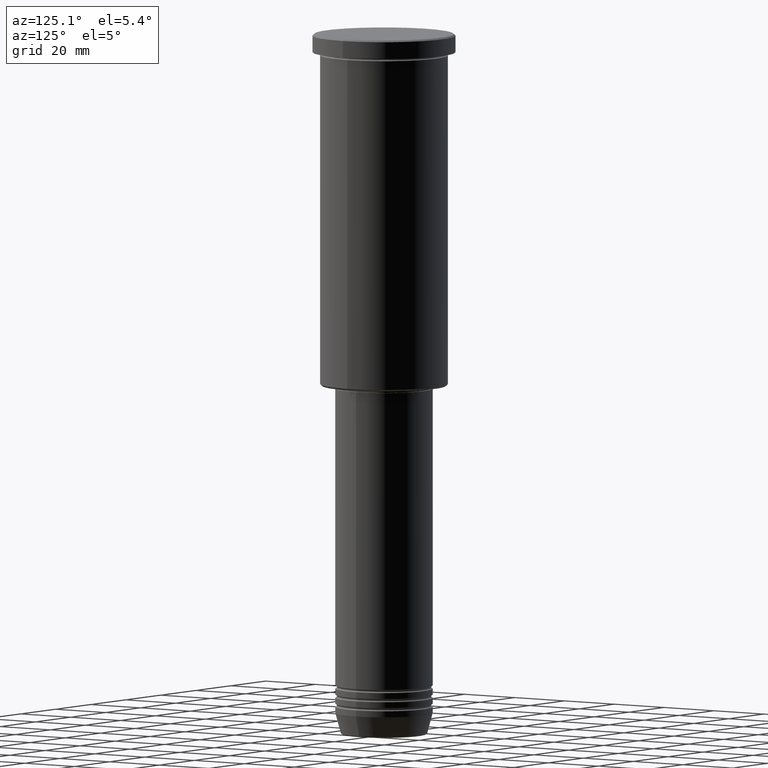
[diagram: clean part render]
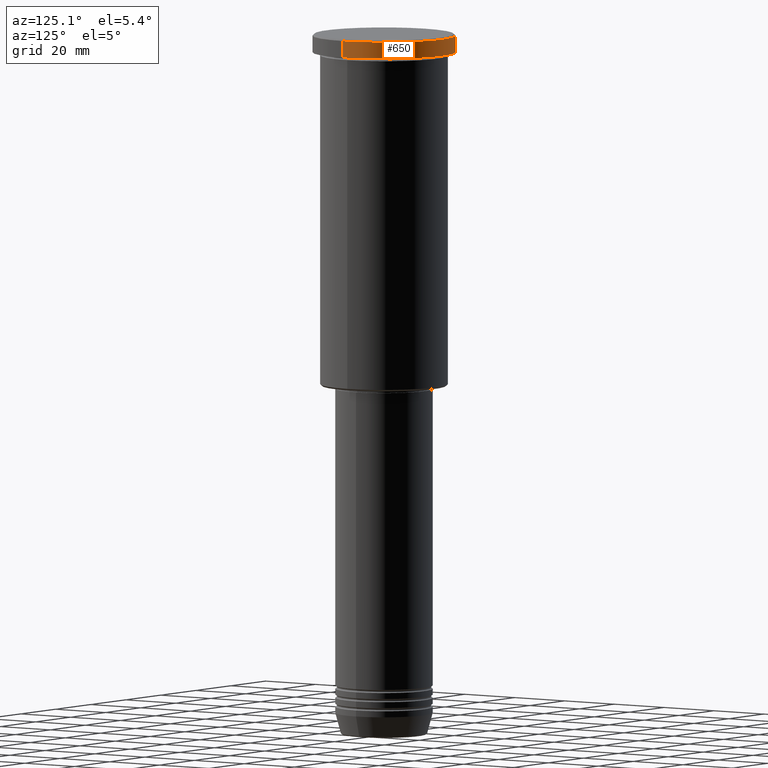
[diagram: same view with one face highlighted and labeled with its STEP entity id]
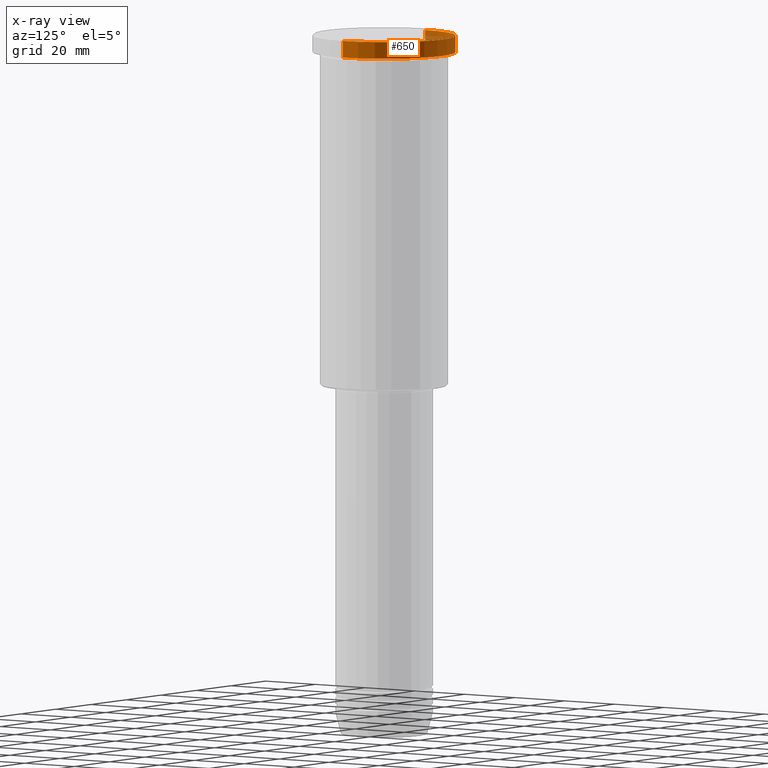
[diagram: x-ray of the same camera — body ghosted, the highlighted face saturated]
A machine part, auxiliary view. The second image highlights one B-rep face of the part: STEP entity #650.
The next image is the same camera in x-ray: the body ghosted, the highlighted face saturated — about 3% of this face is hidden behind the body in this view.
In plain terms, the highlighted cylindrical surface (partial cylindrical patch) has radius 23.5 mm, axis along (-0, -0, 1).
Its self-contained STEP definition (entity closure, byte-faithful):
#15 = DIRECTION ( 'NONE',  ( 0.000000000000000000, 0.000000000000000000, -1.000000000000000000 ) ) ;
#24 = AXIS2_PLACEMENT_3D ( 'NONE', #381, #202, #913 ) ;
#75 = AXIS2_PLACEMENT_3D ( 'NONE', #100, #15, #1080 ) ;
#82 = VERTEX_POINT ( 'NONE', #379 ) ;
#100 = CARTESIAN_POINT ( 'NONE',  ( 0.000000000000000000, 0.000000000000000000, -0.5000000000000837108 ) ) ;
#173 = EDGE_CURVE ( 'NONE', #911, #176, #888, .T. ) ;
#176 = VERTEX_POINT ( 'NONE', #735 ) ;
#184 = CARTESIAN_POINT ( 'NONE',  ( 0.000000000000000000, 0.000000000000000000, -5.999999999999994671 ) ) ;
#196 = VECTOR ( 'NONE', #386, 1000.000000000000000 ) ;
#202 = DIRECTION ( 'NONE',  ( -0.000000000000000000, -0.000000000000000000, 1.000000000000000000 ) ) ;
#209 = ORIENTED_EDGE ( 'NONE', *, *, #173, .T. ) ;
#270 = VERTEX_POINT ( 'NONE', #662 ) ;
#291 = AXIS2_PLACEMENT_3D ( 'NONE', #184, #555, #919 ) ;
#300 = CARTESIAN_POINT ( 'NONE',  ( -23.50000000000000000, 2.877919977996280320E-15, 0.000000000000000000 ) ) ;
#349 = VECTOR ( 'NONE', #1104, 1000.000000000000000 ) ;
#379 = CARTESIAN_POINT ( 'NONE',  ( -23.50000000000000000, 2.877919977996280320E-15, -5.999999999999994671 ) ) ;
#381 = CARTESIAN_POINT ( 'NONE',  ( 0.000000000000000000, 0.000000000000000000, 0.000000000000000000 ) ) ;
#386 = DIRECTION ( 'NONE',  ( -0.000000000000000000, -0.000000000000000000, 1.000000000000000000 ) ) ;
#462 = FACE_OUTER_BOUND ( 'NONE', #953, .T. ) ;
#535 = ORIENTED_EDGE ( 'NONE', *, *, #759, .T. ) ;
#555 = DIRECTION ( 'NONE',  ( -0.000000000000000000, -0.000000000000000000, 1.000000000000000000 ) ) ;
#650 = ADVANCED_FACE ( 'NONE', ( #462 ), #1023, .T. ) ;
#662 = CARTESIAN_POINT ( 'NONE',  ( 23.50000000000000000, 0.000000000000000000, -5.999999999999994671 ) ) ;
#666 = EDGE_CURVE ( 'NONE', #270, #176, #831, .T. ) ;
#735 = CARTESIAN_POINT ( 'NONE',  ( 23.50000000000000000, 0.000000000000000000, -0.5000000000000837108 ) ) ;
#759 = EDGE_CURVE ( 'NONE', #270, #82, #772, .T. ) ;
#772 = CIRCLE ( 'NONE', #291, 23.50000000000000000 ) ;
#814 = EDGE_CURVE ( 'NONE', #82, #911, #1136, .T. ) ;
#831 = LINE ( 'NONE', #932, #349 ) ;
#880 = ORIENTED_EDGE ( 'NONE', *, *, #814, .T. ) ;
#888 = CIRCLE ( 'NONE', #75, 23.50000000000000000 ) ;
#911 = VERTEX_POINT ( 'NONE', #1121 ) ;
#913 = DIRECTION ( 'NONE',  ( 1.000000000000000000, 0.000000000000000000, 0.000000000000000000 ) ) ;
#919 = DIRECTION ( 'NONE',  ( 1.000000000000000000, 0.000000000000000000, 0.000000000000000000 ) ) ;
#927 = ORIENTED_EDGE ( 'NONE', *, *, #666, .F. ) ;
#932 = CARTESIAN_POINT ( 'NONE',  ( 23.50000000000000000, 0.000000000000000000, 0.000000000000000000 ) ) ;
#953 = EDGE_LOOP ( 'NONE', ( #535, #880, #209, #927 ) ) ;
#1023 = CYLINDRICAL_SURFACE ( 'NONE', #24, 23.50000000000000000 ) ;
#1080 = DIRECTION ( 'NONE',  ( 1.000000000000000000, 0.000000000000000000, 0.000000000000000000 ) ) ;
#1104 = DIRECTION ( 'NONE',  ( -0.000000000000000000, -0.000000000000000000, 1.000000000000000000 ) ) ;
#1121 = CARTESIAN_POINT ( 'NONE',  ( -23.50000000000000000, 2.877919977996280320E-15, -0.5000000000000837108 ) ) ;
#1136 = LINE ( 'NONE', #300, #196 ) ;